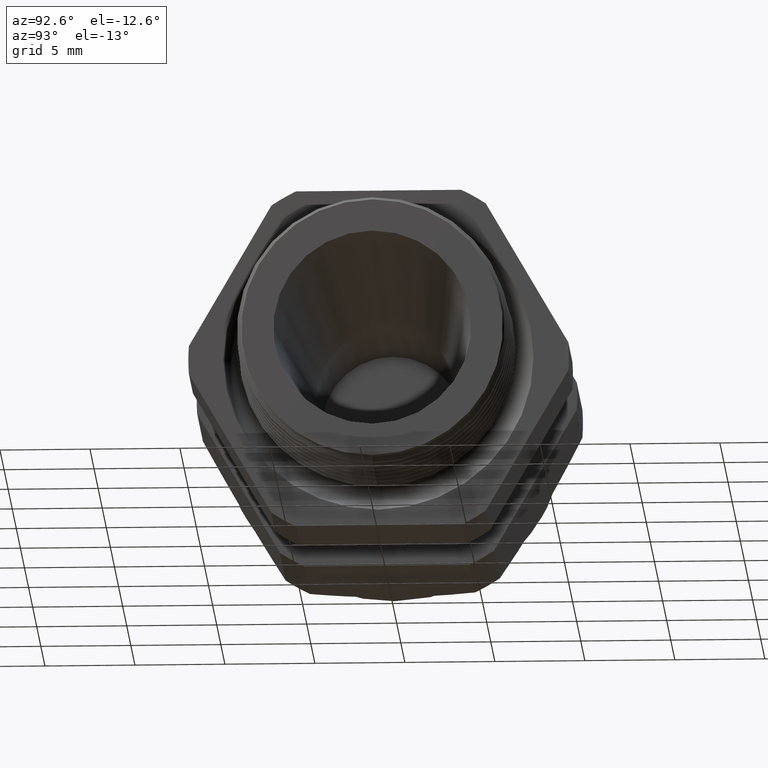
[diagram: clean part render]
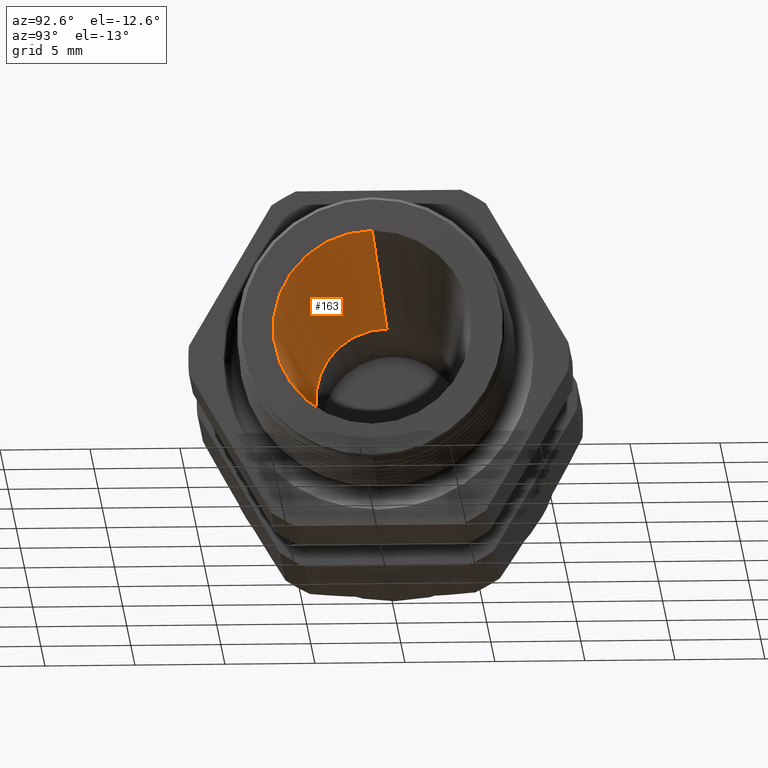
[diagram: same view with one face highlighted and labeled with its STEP entity id]
A machine part, auxiliary view. The second image highlights one B-rep face of the part: STEP entity #163.
In plain terms, the highlighted conical surface has half-angle 4.935 deg.
Its self-contained STEP definition (entity closure, byte-faithful):
#142 = ORIENTED_EDGE ( 'NONE', *, *, #143, .T. ) ;
#143 = EDGE_CURVE ( 'NONE', #168, #144, #1538, .T. ) ;
#144 = VERTEX_POINT ( 'NONE', #1597 ) ;
#145 = ORIENTED_EDGE ( 'NONE', *, *, #146, .F. ) ;
#146 = EDGE_CURVE ( 'NONE', #160, #144, #1596, .T. ) ;
#157 = VERTEX_POINT ( 'NONE', #1574 ) ;
#159 = EDGE_CURVE ( 'NONE', #157, #160, #1573, .T. ) ;
#160 = VERTEX_POINT ( 'NONE', #1631 ) ;
#163 = ADVANCED_FACE ( 'NONE', ( #1626 ), #1624, .F. ) ;
#164 = EDGE_LOOP ( 'NONE', ( #165, #166, #142, #145 ) ) ;
#165 = ORIENTED_EDGE ( 'NONE', *, *, #159, .F. ) ;
#166 = ORIENTED_EDGE ( 'NONE', *, *, #167, .T. ) ;
#167 = EDGE_CURVE ( 'NONE', #157, #168, #1625, .T. ) ;
#168 = VERTEX_POINT ( 'NONE', #1616 ) ;
#1537 = AXIS2_PLACEMENT_3D ( 'NONE', #1600, #1599, #1598 ) ;
#1538 = CIRCLE ( 'NONE', #1537, 0.2163853149567839300 ) ;
#1569 = DIRECTION ( 'NONE',  ( 0.0000000000000000000, 0.0000000000000000000, -1.000000000000000000 ) ) ;
#1570 = DIRECTION ( 'NONE',  ( 1.000000000000000000, 0.0000000000000000000, 0.0000000000000000000 ) ) ;
#1571 = CARTESIAN_POINT ( 'NONE',  ( -0.7108661420999998800, 0.0000000000000000000, 0.0000000000000000000 ) ) ;
#1572 = AXIS2_PLACEMENT_3D ( 'NONE', #1571, #1570, #1569 ) ;
#1573 = CIRCLE ( 'NONE', #1572, 0.1550000000000000000 ) ;
#1574 = CARTESIAN_POINT ( 'NONE',  ( -0.7108661420999998800, 2.274079186060785200E-017, 0.1550000000000000000 ) ) ;
#1593 = DIRECTION ( 'NONE',  ( 0.9962923157347694000, 0.0000000000000000000, -0.08603267755830067100 ) ) ;
#1594 = VECTOR ( 'NONE', #1593, 39.37007874015748100 ) ;
#1595 = CARTESIAN_POINT ( 'NONE',  ( -0.7108661420999998800, 0.0000000000000000000, -0.1550000000000000000 ) ) ;
#1596 = LINE ( 'NONE', #1595, #1594 ) ;
#1597 = CARTESIAN_POINT ( 'NONE',  ( -4.093233819956484000E-018, 0.0000000000000000000, -0.2163853149567839300 ) ) ;
#1598 = DIRECTION ( 'NONE',  ( 0.0000000000000000000, 0.0000000000000000000, -1.000000000000000000 ) ) ;
#1599 = DIRECTION ( 'NONE',  ( 1.000000000000000000, 0.0000000000000000000, 0.0000000000000000000 ) ) ;
#1600 = CARTESIAN_POINT ( 'NONE',  ( -4.093233819956484000E-018, 0.0000000000000000000, 0.0000000000000000000 ) ) ;
#1616 = CARTESIAN_POINT ( 'NONE',  ( -4.093233819956484000E-018, 2.649955833443173400E-017, 0.2163853149567839300 ) ) ;
#1617 = DIRECTION ( 'NONE',  ( 0.9962923157347694000, 1.053596431938492400E-017, 0.08603267755830067100 ) ) ;
#1618 = VECTOR ( 'NONE', #1617, 39.37007874015748100 ) ;
#1619 = CARTESIAN_POINT ( 'NONE',  ( -0.7108661420999998800, 1.898202538678397300E-017, 0.1550000000000000000 ) ) ;
#1620 = DIRECTION ( 'NONE',  ( 0.0000000000000000000, 0.0000000000000000000, -1.000000000000000000 ) ) ;
#1621 = DIRECTION ( 'NONE',  ( 1.000000000000000000, 0.0000000000000000000, 0.0000000000000000000 ) ) ;
#1622 = CARTESIAN_POINT ( 'NONE',  ( -0.7108661420999998800, 0.0000000000000000000, 0.0000000000000000000 ) ) ;
#1623 = AXIS2_PLACEMENT_3D ( 'NONE', #1622, #1621, #1620 ) ;
#1624 = CONICAL_SURFACE ( 'NONE', #1623, 0.1550000000000000000, 0.08613916283552114400 ) ;
#1625 = LINE ( 'NONE', #1619, #1618 ) ;
#1626 = FACE_OUTER_BOUND ( 'NONE', #164, .T. ) ;
#1631 = CARTESIAN_POINT ( 'NONE',  ( -0.7108661420999998800, 0.0000000000000000000, -0.1550000000000000000 ) ) ;